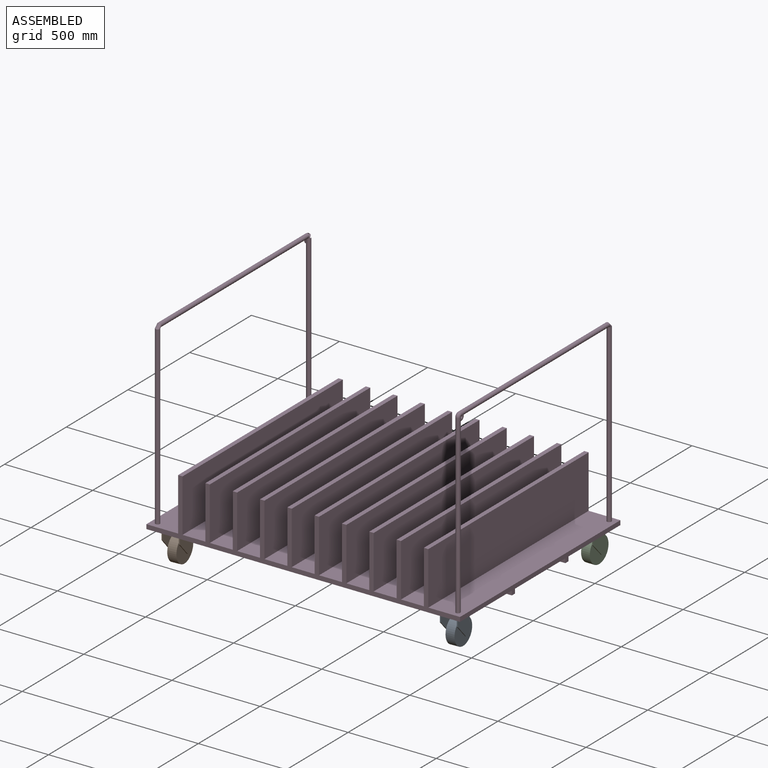
[diagram: assembled view]
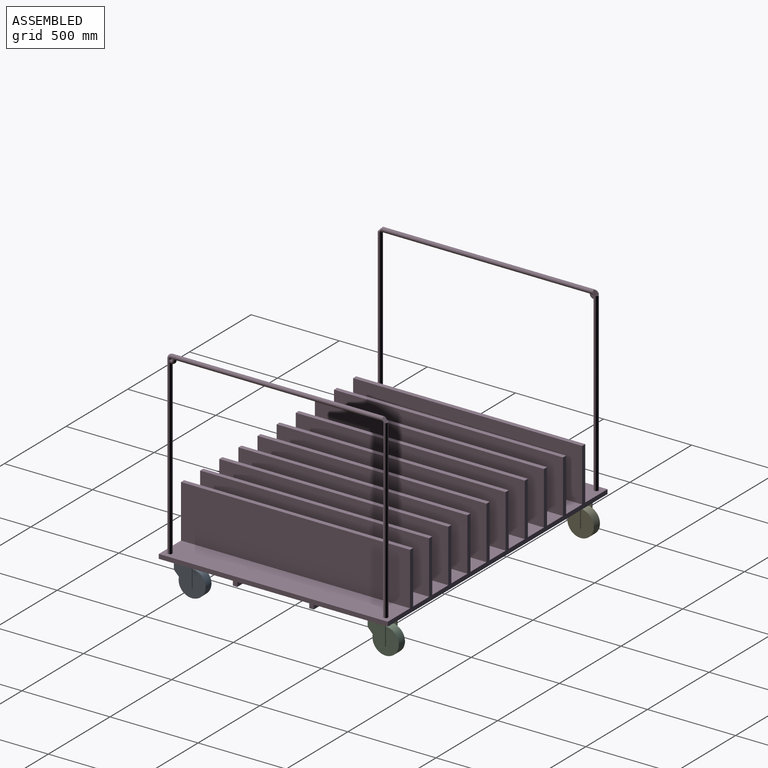
[diagram: assembled view, second angle]
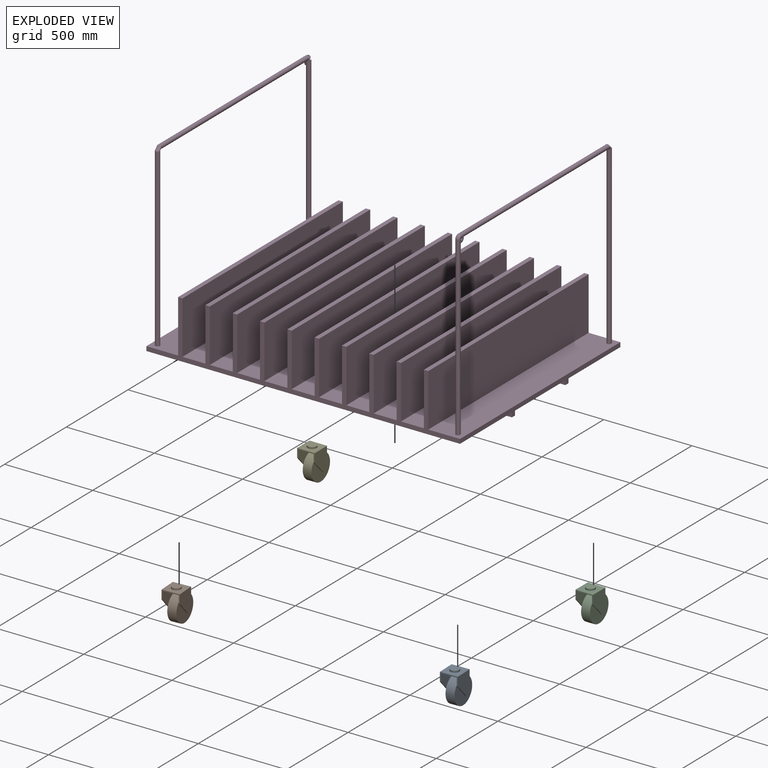
[diagram: exploded view]
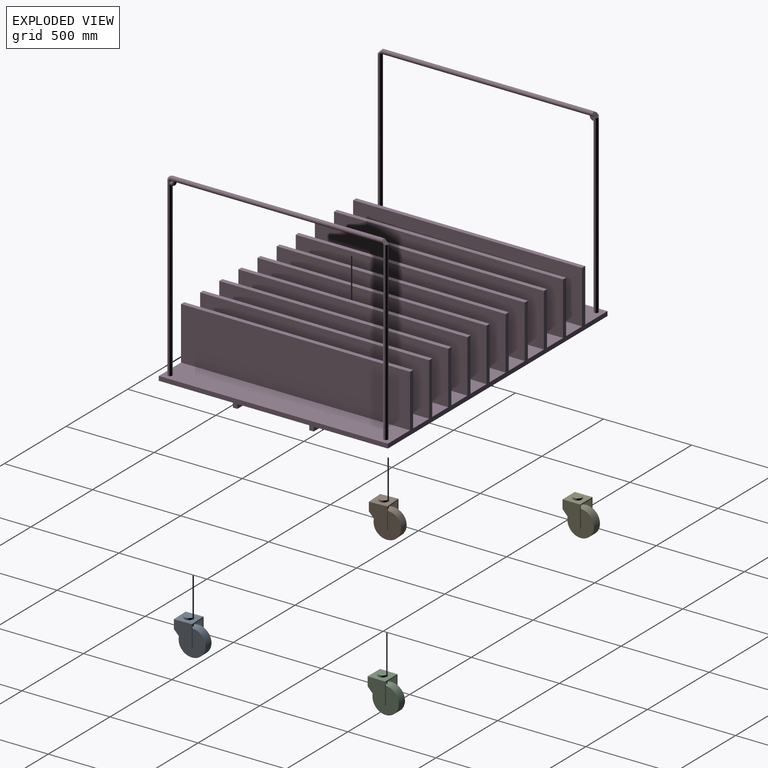
[diagram: exploded view, second angle]
ASSEMBLY  parts=5 mates=8
PART A: 19 faces, bbox 100x160x195 mm
  f0: cylinder r=5mm len=19mm, axis (1,0,0), area 596.9mm2, adj f11,f18
  f1: plane 30x6mm, normal (0,0,-1), area 180mm2, adj f2,f4,f8,f12
  f2: plane 75x70mm, normal (0,-0.73,-0.68), area 615.5mm2, adj f1,f6,f8,f12
  f3: plane 30x6mm, normal (0,0,-1), area 180mm2, adj f4,f7,f9,f11
  f4: plane 125x100mm, normal (0,1,0), area 2028mm2, adj f1,f3,f5,f8,f9,f10,f11,f12
  f5: plane 100x100mm, normal (0,0,1), area 8036.5mm2, adj f4,f6,f8,f9,f14
  f6: plane 100x50mm, normal (0,-1,0), area 1128mm2, adj f2,f5,f7,f8,f9,f10,f11,f12
  f7: plane 75x70mm, normal (0,-0.73,-0.68), area 615.5mm2, adj f3,f6,f9,f11
  f8: plane 125x100mm, normal (1,0,0), area 9875mm2, adj f1,f2,f4,f5,f6
  f9: plane 125x100mm, normal (-1,0,0), area 9875mm2, adj f3,f4,f5,f6,f7
  f10: plane 100x88mm, normal (0,0,-1), area 8800mm2, adj f4,f6,f11,f12
  f11: plane 119x100mm, normal (1,0,0), area 9196.5mm2, adj f0,f3,f4,f6,f7,f10
  f12: plane 119x100mm, normal (-1,0,0), area 9196.5mm2, adj f1,f2,f4,f6,f10,f13
  f13: cylinder r=5mm len=19mm, axis (1,0,0), area 596.9mm2, adj f12,f17
  f14: cylinder r=25mm len=50mm, axis (0,0,-1), area 1570.8mm2, adj f5,f15
  f15: plane 50x50mm, normal (0,0,1), area 1963.5mm2, adj f14
  f16: cylinder r=75mm len=150mm, axis (-1,0,0), area 23561.9mm2, adj f17,f18
  f17: plane 150x150mm, normal (1,0,0), area 17592.9mm2, adj f13,f16
  f18: plane 150x150mm, normal (-1,0,0), area 17592.9mm2, adj f0,f16
PART B: same geometry as A
PART C: same geometry as A
PART D: 80 faces, bbox 1780x1300x1077.1 mm
  f0: plane 1780x420.83mm, normal (0,0,-1), area 713740.4mm2, adj f12,f14,f15,f62,f65,f73
  f1: plane 1780x408.33mm, normal (0,0,-1), area 726833.3mm2, adj f12,f14,f59,f61
  f2: plane 1300x130mm, normal (0,0,1), area 169000mm2, adj f13,f15,f41,f56
  f3: plane 1300x130mm, normal (0,0,1), area 169000mm2, adj f13,f15,f53,f55
  f4: plane 1300x130mm, normal (0,0,1), area 169000mm2, adj f13,f15,f50,f52
  f5: plane 1300x130mm, normal (0,0,1), area 169000mm2, adj f13,f15,f47,f49
  f6: plane 1300x130mm, normal (0,0,1), area 169000mm2, adj f13,f15,f44,f46
  f7: plane 1300x130mm, normal (0,0,1), area 169000mm2, adj f13,f15,f38,f40
  f8: plane 1300x130mm, normal (0,0,1), area 169000mm2, adj f13,f15,f35,f37
  f9: plane 1300x130mm, normal (0,0,1), area 169000mm2, adj f13,f15,f32,f34
  f10: plane 1300x130mm, normal (0,0,1), area 169000mm2, adj f13,f15,f29,f31
  f11: plane 1300x180mm, normal (0,0,1), area 233018.3mm2, adj f13,f14,f15,f18,f19,f28
  f12: plane 1300x50mm, normal (1,0,0), area 33750mm2, adj f0,f1,f13,f15,f16,f17,f58,f59
  f13: plane 1780x325mm, normal (0,1,0), area 119500mm2, adj f2,f3,f4,f5,f6,f7,f8,f9
  f14: plane 1300x50mm, normal (-1,0,0), area 33750mm2, adj f0,f1,f11,f13,f15,f17,f58,f59
  f15: plane 1780x325mm, normal (0,-1,0), area 119500mm2, adj f0,f2,f3,f4,f5,f6,f7,f8
  f16: plane 1300x180mm, normal (0,0,1), area 233018.3mm2, adj f12,f13,f15,f20,f21,f43
  f17: plane 1780x420.83mm, normal (0,0,-1), area 713740.4mm2, adj f12,f13,f14,f58,f69,f77
  f18: cylinder r=12.5mm len=1000mm, axis (0,0,-1), area 78539.8mm2, adj f11,f22
  f19: cylinder r=12.5mm len=1000mm, axis (0,0,-1), area 78539.8mm2, adj f11,f23
  f20: cylinder r=12.5mm len=1000mm, axis (0,0,-1), area 78539.8mm2, adj f16,f25
  f21: cylinder r=12.5mm len=1000mm, axis (0,0,-1), area 78539.8mm2, adj f16,f26
  f22: torus R=12.5mm, axis (-1,0,0), area 1542.1mm2, adj f18,f24
  f23: torus R=12.5mm, axis (-1,0,0), area 1542.1mm2, adj f19,f24
  f24: cylinder r=12.5mm len=1200mm, axis (0,-1,0), area 94247.8mm2, adj f22,f23
  f25: torus R=12.5mm, axis (1,0,0), area 1542.1mm2, adj f20,f27
  f26: torus R=12.5mm, axis (1,0,0), area 1542.1mm2, adj f21,f27
  f27: cylinder r=12.5mm len=1200mm, axis (0,-1,0), area 94247.8mm2, adj f25,f26
  f28: plane 1300x300mm, normal (-1,0,0), area 390000mm2, adj f11,f13,f15,f30
  f29: plane 1300x300mm, normal (1,0,0), area 390000mm2, adj f10,f13,f15,f30
  f30: plane 1300x25mm, normal (0,0,1), area 32500mm2, adj f13,f15,f28,f29
  f31: plane 1300x300mm, normal (-1,0,0), area 390000mm2, adj f10,f13,f15,f33
  f32: plane 1300x300mm, normal (1,0,0), area 390000mm2, adj f9,f13,f15,f33
  f33: plane 1300x25mm, normal (0,0,1), area 32500mm2, adj f13,f15,f31,f32
  f34: plane 1300x300mm, normal (-1,0,0), area 390000mm2, adj f9,f13,f15,f36
  f35: plane 1300x300mm, normal (1,0,0), area 390000mm2, adj f8,f13,f15,f36
  f36: plane 1300x25mm, normal (0,0,1), area 32500mm2, adj f13,f15,f34,f35
  f37: plane 1300x300mm, normal (-1,0,0), area 390000mm2, adj f8,f13,f15,f39
  f38: plane 1300x300mm, normal (1,0,0), area 390000mm2, adj f7,f13,f15,f39
  f39: plane 1300x25mm, normal (0,0,1), area 32500mm2, adj f13,f15,f37,f38
  f40: plane 1300x300mm, normal (-1,0,0), area 390000mm2, adj f7,f13,f15,f42
  f41: plane 1300x300mm, normal (1,0,0), area 390000mm2, adj f2,f13,f15,f42
  f42: plane 1300x25mm, normal (0,0,1), area 32500mm2, adj f13,f15,f40,f41
  f43: plane 1300x300mm, normal (1,0,0), area 390000mm2, adj f13,f15,f16,f45
  f44: plane 1300x300mm, normal (-1,0,0), area 390000mm2, adj f6,f13,f15,f45
  f45: plane 1300x25mm, normal (0,0,1), area 32500mm2, adj f13,f15,f43,f44
  f46: plane 1300x300mm, normal (1,0,0), area 390000mm2, adj f6,f13,f15,f48
  f47: plane 1300x300mm, normal (-1,0,0), area 390000mm2, adj f5,f13,f15,f48
  f48: plane 1300x25mm, normal (0,0,1), area 32500mm2, adj f13,f15,f46,f47
  f49: plane 1300x300mm, normal (1,0,0), area 390000mm2, adj f5,f13,f15,f51
  f50: plane 1300x300mm, normal (-1,0,0), area 390000mm2, adj f4,f13,f15,f51
  f51: plane 1300x25mm, normal (0,0,1), area 32500mm2, adj f13,f15,f49,f50
  f52: plane 1300x300mm, normal (1,0,0), area 390000mm2, adj f4,f13,f15,f54
  f53: plane 1300x300mm, normal (-1,0,0), area 390000mm2, adj f3,f13,f15,f54
  f54: plane 1300x25mm, normal (0,0,1), area 32500mm2, adj f13,f15,f52,f53
  f55: plane 1300x300mm, normal (1,0,0), area 390000mm2, adj f3,f13,f15,f57
  f56: plane 1300x300mm, normal (-1,0,0), area 390000mm2, adj f2,f13,f15,f57
  f57: plane 1300x25mm, normal (0,0,1), area 32500mm2, adj f13,f15,f55,f56
  f58: plane 1780x25mm, normal (0,1,0), area 44500mm2, adj f12,f14,f17,f60
  f59: plane 1780x25mm, normal (0,-1,0), area 44500mm2, adj f1,f12,f14,f60
  f60: plane 1780x25mm, normal (0,0,-1), area 44500mm2, adj f12,f14,f58,f59
  f61: plane 1780x25mm, normal (0,1,0), area 44500mm2, adj f1,f12,f14,f63
  f62: plane 1780x25mm, normal (0,-1,0), area 44500mm2, adj f0,f12,f14,f63
  f63: plane 1780x25mm, normal (0,0,-1), area 44500mm2, adj f12,f14,f61,f62
  f64: cylinder r=25mm len=50mm, axis (0,0,1), area 1570.8mm2, adj f66,f67
  f65: cylinder r=75mm len=150mm, axis (0,0,1), area 4712.4mm2, adj f0,f66
  f66: plane 150x150mm, normal (0,0,-1), area 15708mm2, adj f64,f65
  f67: plane 50x50mm, normal (0,0,-1), area 1963.5mm2, adj f64
  f68: cylinder r=25mm len=50mm, axis (0,0,1), area 1570.8mm2, adj f70,f71
  f69: cylinder r=75mm len=150mm, axis (0,0,1), area 4712.4mm2, adj f17,f70
  f70: plane 150x150mm, normal (0,0,-1), area 15708mm2, adj f68,f69
  f71: plane 50x50mm, normal (0,0,-1), area 1963.5mm2, adj f68
  f72: cylinder r=25mm len=50mm, axis (0,0,1), area 1570.8mm2, adj f74,f75
  f73: cylinder r=75mm len=150mm, axis (0,0,1), area 4712.4mm2, adj f0,f74
  f74: plane 150x150mm, normal (0,0,-1), area 15708mm2, adj f72,f73
  f75: plane 50x50mm, normal (0,0,-1), area 1963.5mm2, adj f72
  f76: cylinder r=25mm len=50mm, axis (0,0,1), area 1570.8mm2, adj f78,f79
  f77: cylinder r=75mm len=150mm, axis (0,0,1), area 4712.4mm2, adj f17,f78
  f78: plane 150x150mm, normal (0,0,-1), area 15708mm2, adj f76,f77
  f79: plane 50x50mm, normal (0,0,-1), area 1963.5mm2, adj f76
PART E: same geometry as A
PLACE A rot(axis=(0,0,1),1.7deg) t=(788.47,-500.02,-10)mm
PLACE B rot(axis=(0,0,1),3.5deg) t=(-793.07,-500.09,-10)mm
PLACE C rot(axis=(0,0,-1),0.3deg) t=(790.29,600,-10)mm
PLACE D at identity
PLACE E t=(-790,600,-10)mm
MATE planar A.f5 <-> D.f64  axis (0,0,1) through (839.98,-548.47,-10)mm
MATE cylindrical E.f14 <-> D.f76  axis (0,0,-1) through (-790,550,-5)mm
MATE planar C.f14 <-> D.f68  axis (0,0,1) through (790,550,-10)mm
MATE planar B.f5 <-> D.f72  axis (0,0,1) through (-839.91,-553.07,-10)mm
MATE cylindrical A.f14 <-> D.f64  axis (0,0,-1) through (790,-550,-5)mm
MATE cylindrical D.f72 <-> B.f14  axis (0,0,1) through (-790,-550,-5)mm
MATE planar E.f14 <-> D.f76  axis (0,0,1) through (-790,550,-10)mm
MATE cylindrical C.f14 <-> D.f68  axis (0,0,-1) through (790,550,-5)mm
